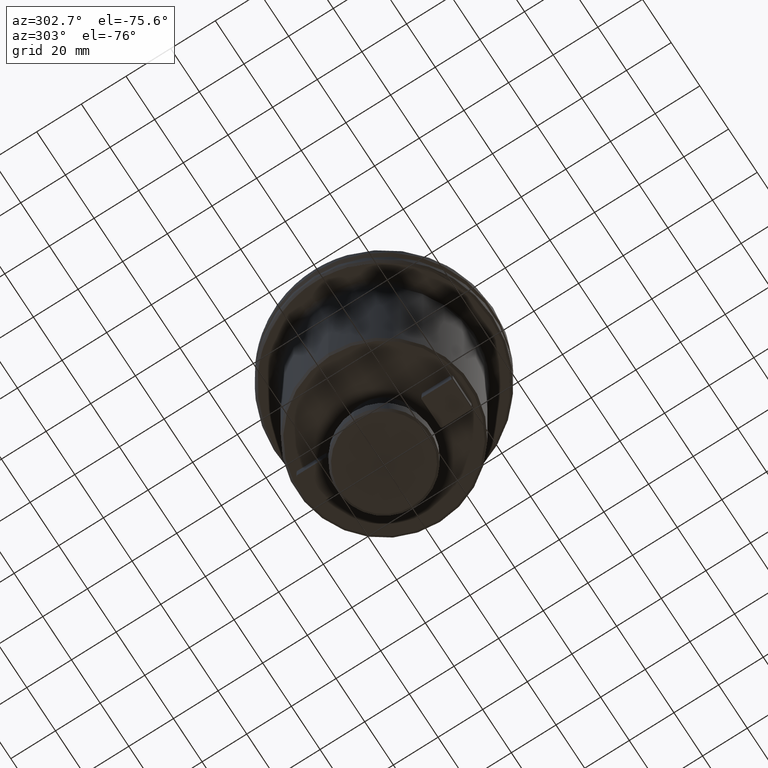
[diagram: clean part render]
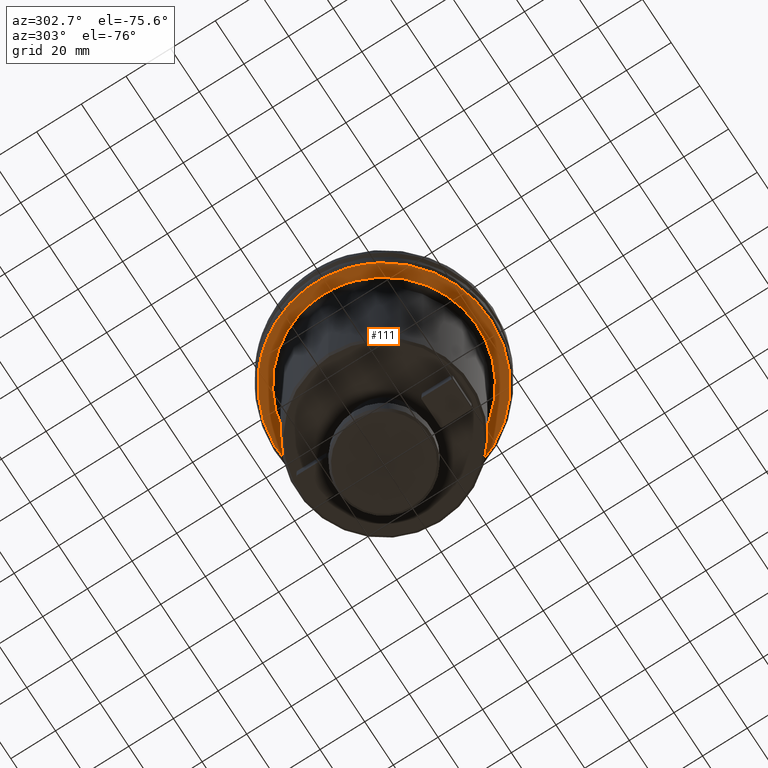
[diagram: same view with one face highlighted and labeled with its STEP entity id]
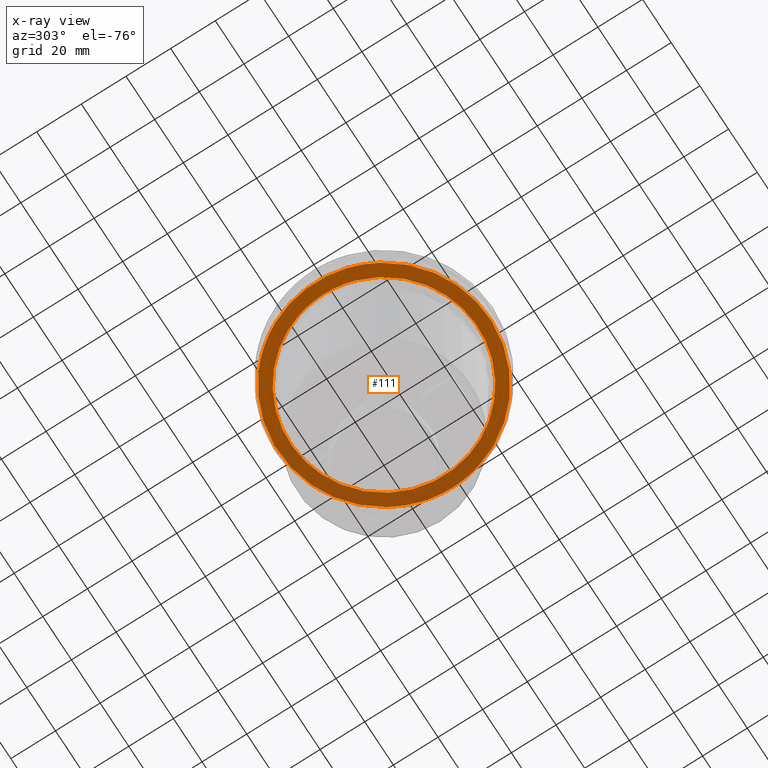
[diagram: x-ray of the same camera — body ghosted, the highlighted face saturated]
A machine part, auxiliary view. The second image highlights one B-rep face of the part: STEP entity #111.
The next image is the same camera in x-ray: the body ghosted, the highlighted face saturated — about 34% of this face is hidden behind the body in this view.
In plain terms, the highlighted planar face has unit normal (0, 0, -1).
Its self-contained STEP definition (entity closure, byte-faithful):
#47 = CARTESIAN_POINT ( 'NONE',  ( 44.91986629715702900, -15.78375219148239400, -19.10000000000000500 ) ) ;
#60 = CARTESIAN_POINT ( 'NONE',  ( 39.74239188769973900, -26.16898826911619100, -19.10000000000001200 ) ) ;
#77 = CARTESIAN_POINT ( 'NONE',  ( 27.68499332084197200, -38.72449491407408600, -19.10000000000000900 ) ) ;
#85 = B_SPLINE_CURVE_WITH_KNOTS ( 'NONE', 3,
 ( #1415, #1771, #47, #2492, #406, #2856, #747, #3205, #1092, #3540, #1434, #3866, #1778, #4178, #2148, #60, #2502, #428, #2869, #760, #3217, #1108, #3550, #1447, #3883, #1793, #4190, #2165, #77, #2518, #441, #2891, #769, #3227, #1121, #3571, #1456, #3895, #1815, #4205, #2176, #93, #2537, #453, #2902, #784, #3241, #1131, #3583, #1479, #3906, #1830, #4228, #2187, #106, #2552, #470, #2917, #797, #3263, #1140, #3594, #1498, #3924, #1843, #4242, #2207, #123, #2565, #485, #2934, #809, #3276, #1164, #3606, #1509, #3939, #1863, #4253, #2220, #147, #2583, #497, #2953, #828, #3288, #1180, #3628, #1520, #3946, #1877, #4269, #2230, #164, #2605, #510, #2964, #845, #3304, #1194, #3641, #1539, #3957, #1894, #4283, #2247, #176, #2622, #529, #2980 ),
 .UNSPECIFIED., .F., .F.,
 ( 4, 1, 1, 1, 1, 1, 2, 2, 1, 1, 1, 1, 2, 2, 1, 1, 1, 1, 2, 2, 2, 1, 1, 1, 1, 2, 2, 1, 1, 1, 1, 2, 2, 1, 1, 1, 1, 1, 2, 2, 2, 1, 1, 1, 1, 1, 2, 2, 1, 1, 1, 1, 2, 2, 1, 1, 1, 1, 2, 2, 2, 1, 1, 1, 1, 2, 2, 1, 1, 1, 1, 2, 2, 1, 1, 1, 1, 1, 2, 2, 4 ),
 ( 0.0000000000000000000, 0.03124999999999778000, 0.04687499999999657900, 0.05468749999999601700, 0.05859374999999566300, 0.06054687499999552400, 0.06152343749999545500, 0.06249999999999538600, 0.09374999999999456000, 0.1093749999999941200, 0.1171874999999938500, 0.1210937499999938100, 0.1230468749999937500, 0.1249999999999937000, 0.1562499999999939800, 0.1718749999999941700, 0.1796874999999942000, 0.1835937499999941700, 0.1855468749999942000, 0.1874999999999942300, 0.2499999999999952800, 0.2812499999999958400, 0.2968749999999960600, 0.3046874999999961700, 0.3085937499999962800, 0.3105468749999962300, 0.3124999999999962300, 0.3437499999999963900, 0.3593749999999965000, 0.3671874999999965600, 0.3710937499999966100, 0.3730468749999966100, 0.3749999999999966700, 0.4062499999999971700, 0.4218749999999974500, 0.4296874999999975600, 0.4335937499999976100, 0.4355468749999976100, 0.4365234374999976700, 0.4374999999999977200, 0.4999999999999995600, 0.5312500000000004400, 0.5468750000000008900, 0.5546875000000011100, 0.5585937500000011100, 0.5605468750000012200, 0.5615234375000013300, 0.5625000000000013300, 0.5937500000000006700, 0.6093750000000003300, 0.6171875000000002200, 0.6210937500000001100, 0.6230468750000001100, 0.6250000000000001100, 0.6562499999999993300, 0.6718749999999988900, 0.6796874999999987800, 0.6835937499999985600, 0.6855468749999985600, 0.6874999999999985600, 0.7499999999999981100, 0.7812499999999978900, 0.7968749999999977800, 0.8046874999999976700, 0.8085937499999975600, 0.8105468749999974500, 0.8124999999999973400, 0.8437499999999964500, 0.8593749999999958900, 0.8671874999999955600, 0.8710937499999953400, 0.8730468749999953400, 0.8749999999999953400, 0.9062499999999948900, 0.9218749999999946700, 0.9296874999999945600, 0.9335937499999945600, 0.9355468749999945600, 0.9365234374999946700, 0.9374999999999946700, 1.000000000000000000 ),
 .UNSPECIFIED. ) ;
#93 = CARTESIAN_POINT ( 'NONE',  ( 15.08070599188592800, -45.13143456946085100, -19.10000000000000900 ) ) ;
#102 = CARTESIAN_POINT ( 'NONE',  ( -23.25549417440079800, 41.53467180138673600, -19.10000000000000500 ) ) ;
#106 = CARTESIAN_POINT ( 'NONE',  ( 2.457672413238246400, -47.58428782218787500, -19.10000000000000900 ) ) ;
#111 = ADVANCED_FACE ( 'NONE', ( #2429, #2931 ), #2632, .T. ) ;
#116 = CARTESIAN_POINT ( 'NONE',  ( -10.82718688243038800, 46.37940535234366000, -19.10000000000000500 ) ) ;
#123 = CARTESIAN_POINT ( 'NONE',  ( -13.70206127222429000, -45.57086505245657500, -19.10000000000000100 ) ) ;
#138 = CARTESIAN_POINT ( 'NONE',  ( 2.921919774953071900, 47.49467552483471900, -19.09999999999999800 ) ) ;
#147 = CARTESIAN_POINT ( 'NONE',  ( -24.37778840664681800, -40.95242410592162200, -19.10000000000000500 ) ) ;
#150 = EDGE_CURVE ( 'NONE', #1411, #1868, #2306, .T. ) ;
#156 = ORIENTED_EDGE ( 'NONE', *, *, #821, .T. ) ;
#159 = CARTESIAN_POINT ( 'NONE',  ( 18.21854896511472800, 43.96310894627836800, -19.10000000000000900 ) ) ;
#164 = CARTESIAN_POINT ( 'NONE',  ( -38.91719004522487800, -27.38454355136135400, -19.10000000000000900 ) ) ;
#173 = CARTESIAN_POINT ( 'NONE',  ( 25.76667434766581300, 40.01666842955532400, -19.10000000000000500 ) ) ;
#176 = CARTESIAN_POINT ( 'NONE',  ( -43.27416862306105800, -19.78925870223156000, -19.10000000000000900 ) ) ;
#187 = CARTESIAN_POINT ( 'NONE',  ( 37.95643437415584000, 28.69908590947580500, -19.10000000000000500 ) ) ;
#203 = CARTESIAN_POINT ( 'NONE',  ( 43.84707740126011500, 18.48525077571082100, -19.10000000000000500 ) ) ;
#226 = CARTESIAN_POINT ( 'NONE',  ( 39.66283206204889200, 13.85551239477848300, -19.10000000000000100 ) ) ;
#244 = CARTESIAN_POINT ( 'NONE',  ( 35.31399927357236400, 22.74766857199762200, -19.10000000000000500 ) ) ;
#250 = CIRCLE ( 'NONE', #2920, 42.00000000000000000 ) ;
#260 = CARTESIAN_POINT ( 'NONE',  ( 28.30695871311028000, 31.11138620266438100, -19.10000000000000900 ) ) ;
#272 = CARTESIAN_POINT ( 'NONE',  ( 13.15912872123934300, 39.88574553977700500, -19.10000000000000900 ) ) ;
#282 = CARTESIAN_POINT ( 'NONE',  ( 4.213360910964308200, 41.84149705313080100, -19.10000000000000900 ) ) ;
#302 = CARTESIAN_POINT ( 'NONE',  ( -10.85244328541656100, 40.58028394299601200, -19.10000000000000500 ) ) ;
#306 = VERTEX_POINT ( 'NONE', #3455 ) ;
#317 = CARTESIAN_POINT ( 'NONE',  ( 45.81642165836818500, -12.85000000000000000, -19.10000000000000500 ) ) ;
#319 = CARTESIAN_POINT ( 'NONE',  ( -20.95891477184435200, 36.46815260777160000, -19.09999999999999800 ) ) ;
#329 = CARTESIAN_POINT ( 'NONE',  ( -33.94703029678682800, 24.73124541940928700, -19.10000000000000900 ) ) ;
#345 = CARTESIAN_POINT ( 'NONE',  ( -38.54605468183990500, 16.81266482017948900, -19.10000000000000500 ) ) ;
#387 = AXIS2_PLACEMENT_3D ( 'NONE', #963, #1001, #988 ) ;
#406 = CARTESIAN_POINT ( 'NONE',  ( 43.72681445220428700, -18.77235708420023000, -19.10000000000000900 ) ) ;
#428 = CARTESIAN_POINT ( 'NONE',  ( 39.61125381757043600, -26.36706712308016200, -19.10000000000000100 ) ) ;
#439 = CARTESIAN_POINT ( 'NONE',  ( 0.0000000000000000000, 0.0000000000000000000, -19.10000000000000500 ) ) ;
#441 = CARTESIAN_POINT ( 'NONE',  ( 24.05664872149412000, -41.06504018283744300, -19.10000000000000500 ) ) ;
#453 = CARTESIAN_POINT ( 'NONE',  ( 14.84463130699052900, -45.20962530651281200, -19.10000000000000900 ) ) ;
#461 = CARTESIAN_POINT ( 'NONE',  ( -20.97772230054858200, 42.71191916152597700, -19.10000000000000100 ) ) ;
#470 = CARTESIAN_POINT ( 'NONE',  ( -3.066716835733801300, -47.51334310158583900, -19.10000000000000900 ) ) ;
#480 = CARTESIAN_POINT ( 'NONE',  ( -6.393095184566051100, 47.17156811542699300, -19.10000000000000900 ) ) ;
#485 = CARTESIAN_POINT ( 'NONE',  ( -14.46442323065742200, -45.33270475704076600, -19.10000000000000500 ) ) ;
#488 = CARTESIAN_POINT ( 'NONE',  ( 39.98596628818666000, 12.84999999999999800, -19.09999999999999800 ) ) ;
#493 = CARTESIAN_POINT ( 'NONE',  ( 5.478699833393303500, 47.28562886859818800, -19.10000000000000100 ) ) ;
#497 = CARTESIAN_POINT ( 'NONE',  ( -29.80952097295647000, -37.11384944854526700, -19.10000000000000500 ) ) ;
#506 = CARTESIAN_POINT ( 'NONE',  ( 19.36869561264892800, 43.46430390230612800, -19.10000000000000100 ) ) ;
#510 = CARTESIAN_POINT ( 'NONE',  ( -39.38217416850997700, -26.70802196479451900, -19.10000000000000500 ) ) ;
#523 = CARTESIAN_POINT ( 'NONE',  ( 28.41294149275874800, 38.17601633497948700, -19.09999999999999800 ) ) ;
#529 = CARTESIAN_POINT ( 'NONE',  ( -45.15259770386980900, -15.21685122227706400, -19.10000000000000100 ) ) ;
#538 = CARTESIAN_POINT ( 'NONE',  ( 39.55409234850913700, 26.48536274293576300, -19.10000000000000100 ) ) ;
#548 = CARTESIAN_POINT ( 'NONE',  ( 43.91854959793744200, 18.31478907998181800, -19.10000000000000100 ) ) ;
#583 = EDGE_LOOP ( 'NONE', ( #1916, #156, #2788, #2485, #1065 ) ) ;
#594 = CARTESIAN_POINT ( 'NONE',  ( 34.51018533127427200, 23.93910244139777500, -19.10000000000000500 ) ) ;
#602 = CARTESIAN_POINT ( 'NONE',  ( 23.82034770913758200, 34.61057954295900200, -19.10000000000000500 ) ) ;
#615 = CARTESIAN_POINT ( 'NONE',  ( 12.82469673703048400, 39.99415024367797100, -19.10000000000000900 ) ) ;
#631 = CARTESIAN_POINT ( 'NONE',  ( -1.056071524167518300, 42.00001320711148600, -19.10000000000000900 ) ) ;
#646 = CARTESIAN_POINT ( 'NONE',  ( -12.23267289723163600, 40.17953746732983700, -19.10000000000000500 ) ) ;
#659 = CARTESIAN_POINT ( 'NONE',  ( -25.66299997043541100, 33.26727541895927900, -19.10000000000000500 ) ) ;
#679 = CARTESIAN_POINT ( 'NONE',  ( -34.15255691184798100, 24.44601719081621000, -19.10000000000000500 ) ) ;
#695 = CARTESIAN_POINT ( 'NONE',  ( -39.98596628818666700, 12.85000000000000000, -19.09999999999999800 ) ) ;
#725 = VERTEX_POINT ( 'NONE', #893 ) ;
#747 = CARTESIAN_POINT ( 'NONE',  ( 43.40111667457645700, -19.50949723452300700, -19.10000000000000900 ) ) ;
#760 = CARTESIAN_POINT ( 'NONE',  ( 37.67621538465287800, -29.11717796348957100, -19.10000000000000500 ) ) ;
#768 = DIRECTION ( 'NONE',  ( -1.000000000000000000, 2.664535259100375700E-015, 0.0000000000000000000 ) ) ;
#769 = CARTESIAN_POINT ( 'NONE',  ( 22.52972475072374100, -41.91334347041178200, -19.10000000000000100 ) ) ;
#784 = CARTESIAN_POINT ( 'NONE',  ( 11.71142353891909200, -46.15177667591264300, -19.10000000000000500 ) ) ;
#795 = CARTESIAN_POINT ( 'NONE',  ( -20.42700269620342000, 42.97696412136785700, -19.09999999999999800 ) ) ;
#797 = CARTESIAN_POINT ( 'NONE',  ( -6.266551039190168200, -47.17166706347747900, -19.10000000000000100 ) ) ;
#804 = CARTESIAN_POINT ( 'NONE',  ( -3.905819226031873400, 47.42442718986811200, -19.10000000000000500 ) ) ;
#809 = CARTESIAN_POINT ( 'NONE',  ( -14.69055632917383000, -45.25992943446074400, -19.10000000000000100 ) ) ;
#814 = CARTESIAN_POINT ( 'NONE',  ( -36.93598507658065700, 30.00000000000000000, -19.10000000000000500 ) ) ;
#818 = CARTESIAN_POINT ( 'NONE',  ( 8.014402807646559900, 46.90567306712805600, -19.10000000000000500 ) ) ;
#821 = EDGE_CURVE ( 'NONE', #2650, #1411, #250, .T. ) ;
#828 = CARTESIAN_POINT ( 'NONE',  ( -33.04293178105576300, -34.25236535246320100, -19.10000000000000500 ) ) ;
#832 = EDGE_CURVE ( 'NONE', #1072, #2650, #4110, .T. ) ;
#837 = CARTESIAN_POINT ( 'NONE',  ( -38.98676025536540400, 27.47508662003281500, -19.10000000000000500 ) ) ;
#840 = CARTESIAN_POINT ( 'NONE',  ( 19.64105775858945100, 43.34165811582305100, -19.10000000000000900 ) ) ;
#845 = CARTESIAN_POINT ( 'NONE',  ( -39.52121115035011900, -26.50183329894598200, -19.10000000000000900 ) ) ;
#848 = CARTESIAN_POINT ( 'NONE',  ( -40.75990645544141000, 24.76850955877843700, -19.10000000000000500 ) ) ;
#856 = CARTESIAN_POINT ( 'NONE',  ( 29.39637043276513900, 37.41901030422590700, -19.10000000000000900 ) ) ;
#869 = CARTESIAN_POINT ( 'NONE',  ( -43.75094089817592600, 18.99202807369529800, -19.10000000000000500 ) ) ;
#873 = CARTESIAN_POINT ( 'NONE',  ( 40.92895922265621100, 24.27337234609990800, -19.10000000000000500 ) ) ;
#893 = CARTESIAN_POINT ( 'NONE',  ( 45.81642165836818500, 12.85000000000000000, -19.10000000000000500 ) ) ;
#894 = CARTESIAN_POINT ( 'NONE',  ( 45.30006797984477600, 14.69104886070644700, -19.10000000000000500 ) ) ;
#907 = CARTESIAN_POINT ( 'NONE',  ( -44.93810529642089300, 15.98161967225063900, -19.10000000000000100 ) ) ;
#919 = CARTESIAN_POINT ( 'NONE',  ( 38.39634171031906400, 17.03573184468762500, -19.10000000000000500 ) ) ;
#932 = DIRECTION ( 'NONE',  ( 1.000000000000000000, 0.0000000000000000000, 0.0000000000000000000 ) ) ;
#933 = CARTESIAN_POINT ( 'NONE',  ( 34.31348525999480600, 24.21960723359058700, -19.10000000000000500 ) ) ;
#943 = DIRECTION ( 'NONE',  ( -0.0000000000000000000, -0.0000000000000000000, 1.000000000000000000 ) ) ;
#953 = CARTESIAN_POINT ( 'NONE',  ( 20.68378777586021400, 36.56173116150525700, -19.10000000000000500 ) ) ;
#961 = CARTESIAN_POINT ( 'NONE',  ( 0.0000000000000000000, 0.0000000000000000000, -19.10000000000000500 ) ) ;
#963 = CARTESIAN_POINT ( 'NONE',  ( 0.0000000000000000000, 0.0000000000000000000, -19.10000000000000500 ) ) ;
#969 = CARTESIAN_POINT ( 'NONE',  ( 11.64539233177989500, 40.36815965128677400, -19.10000000000001200 ) ) ;
#981 = CARTESIAN_POINT ( 'NONE',  ( -36.93598507658065700, 30.00000000000000000, -19.10000000000000500 ) ) ;
#982 = CARTESIAN_POINT ( 'NONE',  ( -4.471247866684340300, 41.76725493963739000, -19.10000000000000500 ) ) ;
#988 = DIRECTION ( 'NONE',  ( -1.000000000000000000, 0.0000000000000000000, 0.0000000000000000000 ) ) ;
#994 = CARTESIAN_POINT ( 'NONE',  ( -12.55990744677068700, 40.07809089971730300, -19.10000000000000100 ) ) ;
#1001 = DIRECTION ( 'NONE',  ( -0.0000000000000000000, -0.0000000000000000000, 1.000000000000000000 ) ) ;
#1017 = CARTESIAN_POINT ( 'NONE',  ( -28.48022563675362700, 30.87808300336503100, -19.10000000000000500 ) ) ;
#1022 = CARTESIAN_POINT ( 'NONE',  ( -45.81642165836818500, 12.85000000000000000, -19.10000000000000500 ) ) ;
#1030 = CARTESIAN_POINT ( 'NONE',  ( -34.86944236836327300, 23.43769325493348200, -19.10000000000000900 ) ) ;
#1038 = B_SPLINE_CURVE_WITH_KNOTS ( 'NONE', 3,
 ( #1022, #907, #869, #848, #837, #814 ),
 .UNSPECIFIED., .F., .F.,
 ( 4, 2, 4 ),
 ( 0.0000000000000000000, 0.5000000000000000000, 1.000000000000000000 ),
 .UNSPECIFIED. ) ;
#1040 = CIRCLE ( 'NONE', #2889, 47.58431457505076900 ) ;
#1065 = ORIENTED_EDGE ( 'NONE', *, *, #1405, .T. ) ;
#1072 = VERTEX_POINT ( 'NONE', #488 ) ;
#1073 = CARTESIAN_POINT ( 'NONE',  ( -39.98596628818666700, 12.85000000000000000, -19.09999999999999800 ) ) ;
#1092 = CARTESIAN_POINT ( 'NONE',  ( 43.32195833354379000, -19.68441884222572800, -19.10000000000000500 ) ) ;
#1105 = DIRECTION ( 'NONE',  ( -1.000000000000000000, 0.0000000000000000000, -0.0000000000000000000 ) ) ;
#1108 = CARTESIAN_POINT ( 'NONE',  ( 35.45219036235576500, -31.74276426336270500, -19.10000000000000500 ) ) ;
#1121 = CARTESIAN_POINT ( 'NONE',  ( 22.16184123277559700, -42.10851106048077200, -19.10000000000000900 ) ) ;
#1126 = CARTESIAN_POINT ( 'NONE',  ( -26.74803097108493000, 39.36004225602716400, -19.10000000000000500 ) ) ;
#1131 = CARTESIAN_POINT ( 'NONE',  ( 8.433288832968020900, -46.83300009518481500, -19.10000000000000500 ) ) ;
#1136 = CARTESIAN_POINT ( 'NONE',  ( -19.30618639452273300, 43.50317719476752400, -19.10000000000000100 ) ) ;
#1140 = CARTESIAN_POINT ( 'NONE',  ( -7.064305541282759100, -47.05712494446966300, -19.10000000000000900 ) ) ;
#1154 = VERTEX_POINT ( 'NONE', #1564 ) ;
#1156 = CARTESIAN_POINT ( 'NONE',  ( -3.155000903945456500, 47.48025286090142300, -19.10000000000000900 ) ) ;
#1160 = VERTEX_POINT ( 'NONE', #1927 ) ;
#1164 = CARTESIAN_POINT ( 'NONE',  ( -17.86104397993744900, -44.13944229614413200, -19.10000000000000500 ) ) ;
#1173 = CARTESIAN_POINT ( 'NONE',  ( 8.615996470641381000, 46.79781295841750900, -19.10000000000000500 ) ) ;
#1180 = CARTESIAN_POINT ( 'NONE',  ( -34.27205937641023300, -33.01125269224346700, -19.10000000000000100 ) ) ;
#1184 = CARTESIAN_POINT ( 'NONE',  ( 0.0000000000000000000, 1.392610934382537900E-015, -19.10000000000000500 ) ) ;
#1191 = CARTESIAN_POINT ( 'NONE',  ( 20.63973171907657900, 42.88620113813023900, -19.10000000000000900 ) ) ;
#1194 = CARTESIAN_POINT ( 'NONE',  ( -41.27447217701355000, -23.73945825336500100, -19.10000000000000500 ) ) ;
#1201 = CARTESIAN_POINT ( 'NONE',  ( 31.34720755508379900, 35.85573751084054800, -19.10000000000000500 ) ) ;
#1220 = CARTESIAN_POINT ( 'NONE',  ( 41.24130619434603800, 23.73682857431735700, -19.10000000000000900 ) ) ;
#1260 = CARTESIAN_POINT ( 'NONE',  ( 37.80913703556716900, 18.28934513759559300, -19.10000000000000500 ) ) ;
#1264 = CARTESIAN_POINT ( 'NONE',  ( 0.0000000000000000000, 0.0000000000000000000, -19.10000000000000500 ) ) ;
#1274 = CARTESIAN_POINT ( 'NONE',  ( 33.58234678643996300, 25.24862955926969500, -19.10000000000000500 ) ) ;
#1287 = CARTESIAN_POINT ( 'NONE',  ( 19.43035160354336800, 37.23550691542352100, -19.10000000000000500 ) ) ;
#1297 = CARTESIAN_POINT ( 'NONE',  ( 8.190777940832218100, 41.20007492816253600, -19.10000000000000500 ) ) ;
#1312 = CARTESIAN_POINT ( 'NONE',  ( -5.844481615887358000, 41.59174265287745000, -19.09999999999999800 ) ) ;
#1327 = CARTESIAN_POINT ( 'NONE',  ( -13.76327843282057600, 39.69684467417290100, -19.10000000000000100 ) ) ;
#1337 = CARTESIAN_POINT ( 'NONE',  ( -29.50518347949411800, 29.89089638213193100, -19.10000000000000500 ) ) ;
#1353 = CARTESIAN_POINT ( 'NONE',  ( -36.71841215741394400, 20.40326508188038400, -19.10000000000000500 ) ) ;
#1405 = EDGE_CURVE ( 'NONE', #4424, #1072, #2210, .T. ) ;
#1411 = VERTEX_POINT ( 'NONE', #3548 ) ;
#1415 = CARTESIAN_POINT ( 'NONE',  ( 45.81642165836818500, -12.85000000000000000, -19.10000000000000500 ) ) ;
#1434 = CARTESIAN_POINT ( 'NONE',  ( 42.75923279349206800, -20.91773531037192800, -19.10000000000000500 ) ) ;
#1447 = CARTESIAN_POINT ( 'NONE',  ( 34.89789368789844600, -32.34827798778996300, -19.10000000000000100 ) ) ;
#1456 = CARTESIAN_POINT ( 'NONE',  ( 20.84887959193406800, -42.79392924822951000, -19.10000000000000900 ) ) ;
#1469 = CARTESIAN_POINT ( 'NONE',  ( -25.69983870482903400, 40.04760097354591900, -19.10000000000000900 ) ) ;
#1470 = ORIENTED_EDGE ( 'NONE', *, *, #3588, .T. ) ;
#1471 = AXIS2_PLACEMENT_3D ( 'NONE', #961, #943, #932 ) ;
#1479 = CARTESIAN_POINT ( 'NONE',  ( 7.606337559600864200, -46.97256599227938500, -19.10000000000000500 ) ) ;
#1482 = CARTESIAN_POINT ( 'NONE',  ( -45.81642165836818500, 12.85000000000000000, -19.10000000000000500 ) ) ;
#1491 = CARTESIAN_POINT ( 'NONE',  ( -16.31507297257428800, 44.70483040319042100, -19.10000000000000100 ) ) ;
#1498 = CARTESIAN_POINT ( 'NONE',  ( -7.254117645265835400, -47.02814260653002500, -19.10000000000000900 ) ) ;
#1506 = CARTESIAN_POINT ( 'NONE',  ( -0.4276219226842210000, 47.60060714561257100, -19.10000000000000500 ) ) ;
#1509 = CARTESIAN_POINT ( 'NONE',  ( -20.98967348492718400, -42.70707776895816500, -19.10000000000000500 ) ) ;
#1511 = CARTESIAN_POINT ( 'NONE',  ( 0.0000000000000000000, 0.0000000000000000000, -19.10000000000000500 ) ) ;
#1515 = CARTESIAN_POINT ( 'NONE',  ( 8.797719920410600000, 46.76398851016824700, -19.10000000000000500 ) ) ;
#1520 = CARTESIAN_POINT ( 'NONE',  ( -34.55932176383649300, -32.70974151198348100, -19.10000000000000500 ) ) ;
#1533 = CARTESIAN_POINT ( 'NONE',  ( 23.44915669443227200, 41.41046852583234300, -19.10000000000000500 ) ) ;
#1539 = CARTESIAN_POINT ( 'NONE',  ( -42.81563655119826700, -20.76707791608161100, -19.10000000000000500 ) ) ;
#1548 = CARTESIAN_POINT ( 'NONE',  ( 34.91299446006971900, 32.34739424200956400, -19.10000000000000500 ) ) ;
#1558 = CARTESIAN_POINT ( 'NONE',  ( 41.84803922460157100, 22.67082524195410900, -19.10000000000000100 ) ) ;
#1564 = CARTESIAN_POINT ( 'NONE',  ( -29.99999999999999600, 36.93598507658065700, -19.10000000000000500 ) ) ;
#1597 = CARTESIAN_POINT ( 'NONE',  ( 37.66396913253122100, 18.58565250516175000, -19.10000000000001200 ) ) ;
#1599 = DIRECTION ( 'NONE',  ( 1.000000000000000000, 0.0000000000000000000, 0.0000000000000000000 ) ) ;
#1610 = CARTESIAN_POINT ( 'NONE',  ( 31.26056297241980900, 28.05959898489966900, -19.10000000000000500 ) ) ;
#1626 = CARTESIAN_POINT ( 'NONE',  ( 19.04871731800880500, 37.43215198220627100, -19.10000000000000500 ) ) ;
#1646 = CARTESIAN_POINT ( 'NONE',  ( 6.775494912107594900, 41.45028589430393100, -19.10000000000000500 ) ) ;
#1649 = AXIS2_PLACEMENT_3D ( 'NONE', #1788, #4185, #2159 ) ;
#1661 = CARTESIAN_POINT ( 'NONE',  ( -6.171019598763351200, 41.54418815921702900, -19.10000000000000500 ) ) ;
#1668 = AXIS2_PLACEMENT_3D ( 'NONE', #1184, #1767, #1105 ) ;
#1677 = CARTESIAN_POINT ( 'NONE',  ( -17.14980821143680600, 38.34642057423984300, -19.10000000000000500 ) ) ;
#1695 = CARTESIAN_POINT ( 'NONE',  ( -29.80916070757828600, 29.58772670196544000, -19.10000000000000500 ) ) ;
#1714 = CARTESIAN_POINT ( 'NONE',  ( -37.38963392346740000, 19.13240202099650800, -19.10000000000000500 ) ) ;
#1767 = DIRECTION ( 'NONE',  ( 0.0000000000000000000, 0.0000000000000000000, -1.000000000000000000 ) ) ;
#1771 = CARTESIAN_POINT ( 'NONE',  ( 45.48455499196277400, -14.03326405621701100, -19.10000000000000100 ) ) ;
#1778 = CARTESIAN_POINT ( 'NONE',  ( 40.76988109013157000, -24.55223597831507500, -19.10000000000000900 ) ) ;
#1788 = CARTESIAN_POINT ( 'NONE',  ( 0.0000000000000000000, 0.0000000000000000000, -19.10000000000000500 ) ) ;
#1793 = CARTESIAN_POINT ( 'NONE',  ( 34.73067266395411000, -32.52774543433425700, -19.10000000000000100 ) ) ;
#1815 = CARTESIAN_POINT ( 'NONE',  ( 16.93742074003273900, -44.47652521782405400, -19.10000000000000100 ) ) ;
#1825 = CARTESIAN_POINT ( 'NONE',  ( -25.44784265904079100, 40.20793179859312300, -19.09999999999999400 ) ) ;
#1830 = CARTESIAN_POINT ( 'NONE',  ( 7.409008762633226800, -47.00399060518158500, -19.09999999999999800 ) ) ;
#1838 = CARTESIAN_POINT ( 'NONE',  ( -15.14249711230291600, 45.11134788466759500, -19.09999999999999800 ) ) ;
#1843 = CARTESIAN_POINT ( 'NONE',  ( -8.593580539630483600, -46.81937647076279800, -19.10000000000000500 ) ) ;
#1846 = EDGE_CURVE ( 'NONE', #1868, #4424, #4423, .T. ) ;
#1854 = CARTESIAN_POINT ( 'NONE',  ( 2.176018877763047600, 47.53568396421928100, -19.10000000000000900 ) ) ;
#1863 = CARTESIAN_POINT ( 'NONE',  ( -21.72237678637516800, -42.33689194281741700, -19.10000000000000500 ) ) ;
#1868 = VERTEX_POINT ( 'NONE', #2135 ) ;
#1872 = CARTESIAN_POINT ( 'NONE',  ( 12.58557862074794000, 45.92953526851350400, -19.10000000000000500 ) ) ;
#1877 = CARTESIAN_POINT ( 'NONE',  ( -35.57383602575539800, -31.63065524385431400, -19.10000000000000100 ) ) ;
#1886 = CARTESIAN_POINT ( 'NONE',  ( 24.50233304969292900, 40.79115049132191500, -19.10000000000000500 ) ) ;
#1894 = CARTESIAN_POINT ( 'NONE',  ( -43.17333286363982100, -20.00853958726899200, -19.10000000000000500 ) ) ;
#1904 = CARTESIAN_POINT ( 'NONE',  ( 37.03410230690259700, 29.88621448141576700, -19.10000000000000500 ) ) ;
#1916 = ORIENTED_EDGE ( 'NONE', *, *, #832, .T. ) ;
#1919 = CARTESIAN_POINT ( 'NONE',  ( 43.26075550676694800, 19.82919047881128400, -19.10000000000000500 ) ) ;
#1927 = CARTESIAN_POINT ( 'NONE',  ( 47.58431457505076900, 0.0000000000000000000, -19.10000000000000500 ) ) ;
#1946 = CARTESIAN_POINT ( 'NONE',  ( 0.0000000000000000000, 0.0000000000000000000, -19.10000000000000500 ) ) ;
#1957 = CARTESIAN_POINT ( 'NONE',  ( 37.62060759770284300, 18.67327029331842100, -19.10000000000000500 ) ) ;
#1980 = CARTESIAN_POINT ( 'NONE',  ( 30.30033039236879200, 29.08454755832272600, -19.10000000000000500 ) ) ;
#1999 = CARTESIAN_POINT ( 'NONE',  ( 16.38614117406509900, 38.70041143161874000, -19.10000000000000500 ) ) ;
#2014 = CARTESIAN_POINT ( 'NONE',  ( 6.437097436698403300, 41.50379408942963300, -19.10000000000000500 ) ) ;
#2024 = ORIENTED_EDGE ( 'NONE', *, *, #3986, .F. ) ;
#2030 = CARTESIAN_POINT ( 'NONE',  ( -6.267713066866428500, 41.52971120028454500, -19.10000000000000900 ) ) ;
#2034 = EDGE_CURVE ( 'NONE', #1154, #2427, #3720, .T. ) ;
#2041 = EDGE_CURVE ( 'NONE', #2244, #2427, #1038, .T. ) ;
#2049 = CARTESIAN_POINT ( 'NONE',  ( -18.41939268176948400, 37.74581965984855000, -19.10000000000000500 ) ) ;
#2062 = CARTESIAN_POINT ( 'NONE',  ( -31.83122458947670800, 27.44085655891737100, -19.10000000000000500 ) ) ;
#2077 = CARTESIAN_POINT ( 'NONE',  ( -37.54410974358242500, 18.82660274158065800, -19.10000000000000900 ) ) ;
#2109 = AXIS2_PLACEMENT_3D ( 'NONE', #1511, #2158, #2677 ) ;
#2135 = CARTESIAN_POINT ( 'NONE',  ( -39.98596628818666000, -12.85000000000000500, -19.09999999999999800 ) ) ;
#2148 = CARTESIAN_POINT ( 'NONE',  ( 39.87405336317789300, -25.96868526588640000, -19.10000000000000100 ) ) ;
#2158 = DIRECTION ( 'NONE',  ( -0.0000000000000000000, -0.0000000000000000000, 1.000000000000000000 ) ) ;
#2159 = DIRECTION ( 'NONE',  ( 1.000000000000000000, 0.0000000000000000000, 0.0000000000000000000 ) ) ;
#2165 = CARTESIAN_POINT ( 'NONE',  ( 30.87175777942523800, -36.30849107487021900, -19.10000000000000100 ) ) ;
#2176 = CARTESIAN_POINT ( 'NONE',  ( 15.31431248954055300, -45.05316046877541000, -19.10000000000000100 ) ) ;
#2182 = CARTESIAN_POINT ( 'NONE',  ( -24.51896949215701900, 40.79270656059319600, -19.10000000000000100 ) ) ;
#2185 = CARTESIAN_POINT ( 'NONE',  ( 39.98596628818666000, -12.85000000000000000, -19.09999999999999800 ) ) ;
#2187 = CARTESIAN_POINT ( 'NONE',  ( 4.901693833011012000, -47.39496812887867300, -19.10000000000001200 ) ) ;
#2199 = CARTESIAN_POINT ( 'NONE',  ( -12.76496267438223200, 45.88395211695184600, -19.09999999999999800 ) ) ;
#2202 = CARTESIAN_POINT ( 'NONE',  ( 39.33959402213734100, -14.86134783189627000, -19.10000000000000500 ) ) ;
#2207 = CARTESIAN_POINT ( 'NONE',  ( -12.63026754929554600, -45.88542074854634500, -19.10000000000000500 ) ) ;
#2208 = CARTESIAN_POINT ( 'NONE',  ( 38.54605468183992700, -16.81266482017946700, -19.10000000000000900 ) ) ;
#2210 = CIRCLE ( 'NONE', #3230, 42.00000000000000000 ) ;
#2213 = CARTESIAN_POINT ( 'NONE',  ( 37.59064972956722500, -18.73350231085989700, -19.10000000000000100 ) ) ;
#2216 = CARTESIAN_POINT ( 'NONE',  ( 2.795956690231360800, 47.50226303628877400, -19.10000000000000100 ) ) ;
#2217 = CARTESIAN_POINT ( 'NONE',  ( 37.57478275261382800, -18.76530919720509900, -19.10000000000000100 ) ) ;
#2220 = CARTESIAN_POINT ( 'NONE',  ( -21.94033403670224300, -42.22434829679992400, -19.10000000000000500 ) ) ;
#2221 = CARTESIAN_POINT ( 'NONE',  ( 37.54410974358242500, -18.82660274158061900, -19.10000000000000100 ) ) ;
#2224 = CARTESIAN_POINT ( 'NONE',  ( 37.49799273568452700, -18.91847837016374000, -19.10000000000000500 ) ) ;
#2225 = CARTESIAN_POINT ( 'NONE',  ( 16.66931579828063500, 44.58704690948568600, -19.10000000000000500 ) ) ;
#2230 = CARTESIAN_POINT ( 'NONE',  ( -38.25019637275914900, -28.31889818161814500, -19.10000000000000500 ) ) ;
#2232 = CARTESIAN_POINT ( 'NONE',  ( 37.38963392346742200, -19.13240202099648700, -19.10000000000000500 ) ) ;
#2236 = CARTESIAN_POINT ( 'NONE',  ( 37.16990645721166000, -19.55843805921733700, -19.10000000000000500 ) ) ;
#2237 = EDGE_CURVE ( 'NONE', #2260, #1160, #4360, .T. ) ;
#2240 = CARTESIAN_POINT ( 'NONE',  ( 24.81440725883085800, 40.60206258293646200, -19.10000000000000500 ) ) ;
#2244 = VERTEX_POINT ( 'NONE', #1482 ) ;
#2247 = CARTESIAN_POINT ( 'NONE',  ( -43.25687800644198700, -19.82702823906568700, -19.10000000000000100 ) ) ;
#2249 = CARTESIAN_POINT ( 'NONE',  ( 36.71841215741395800, -20.40326508188036300, -19.10000000000000500 ) ) ;
#2259 = CARTESIAN_POINT ( 'NONE',  ( 37.80367910322554800, 28.90003077334454300, -19.10000000000000900 ) ) ;
#2260 = VERTEX_POINT ( 'NONE', #317 ) ;
#2272 = CARTESIAN_POINT ( 'NONE',  ( 35.76726608867397800, -22.06393891209173200, -19.10000000000000500 ) ) ;
#2275 = CARTESIAN_POINT ( 'NONE',  ( 43.77572545363726400, 18.65419956364984300, -19.10000000000000100 ) ) ;
#2280 = CARTESIAN_POINT ( 'NONE',  ( 34.86944236836328100, -23.43769325493345000, -19.10000000000000100 ) ) ;
#2285 = CARTESIAN_POINT ( 'NONE',  ( 34.19449928193090900, -24.38730907363920900, -19.10000000000000500 ) ) ;
#2292 = CARTESIAN_POINT ( 'NONE',  ( 34.15255691185148400, -24.44601719081128300, -19.10000000000000100 ) ) ;
#2301 = CARTESIAN_POINT ( 'NONE',  ( 34.07050790624332800, -24.56024464789562600, -19.10000000000000500 ) ) ;
#2303 = DIRECTION ( 'NONE',  ( -1.000000000000000000, -4.440892098500627000E-015, 0.0000000000000000000 ) ) ;
#2306 = CIRCLE ( 'NONE', #387, 42.00000000000000000 ) ;
#2313 = CARTESIAN_POINT ( 'NONE',  ( 33.94703029679848100, -24.73124541939289500, -19.10000000000000500 ) ) ;
#2321 = CARTESIAN_POINT ( 'NONE',  ( 33.65608716753167300, -25.12786432064840600, -19.10000000000000900 ) ) ;
#2325 = CARTESIAN_POINT ( 'NONE',  ( 36.32943245806730900, 21.12550586492986000, -19.10000000000000900 ) ) ;
#2337 = CARTESIAN_POINT ( 'NONE',  ( 33.06288608008316000, -25.91157052754025600, -19.10000000000000500 ) ) ;
#2339 = CARTESIAN_POINT ( 'NONE',  ( 30.00797217103912100, 29.38608116386805600, -19.10000000000000500 ) ) ;
#2350 = CARTESIAN_POINT ( 'NONE',  ( 31.83122458952635700, -27.44085655884748600, -19.10000000000000500 ) ) ;
#2352 = CARTESIAN_POINT ( 'NONE',  ( 13.62574322664351500, 39.73010055697096700, -19.10000000000001200 ) ) ;
#2371 = CARTESIAN_POINT ( 'NONE',  ( 6.334219728179170300, 41.51961844933410400, -19.10000000000000100 ) ) ;
#2375 = ORIENTED_EDGE ( 'NONE', *, *, #2237, .F. ) ;
#2385 = CARTESIAN_POINT ( 'NONE',  ( 30.69792734220368800, -28.68631364429399600, -19.10000000000000100 ) ) ;
#2386 = CARTESIAN_POINT ( 'NONE',  ( -8.997394243984697200, 41.05071933103931100, -19.10000000000000500 ) ) ;
#2392 = CARTESIAN_POINT ( 'NONE',  ( 29.80916070757473700, -29.58772670197041400, -19.09999999999999800 ) ) ;
#2397 = CARTESIAN_POINT ( 'NONE',  ( 29.70725458203373000, -29.69005628931465800, -19.10000000000000500 ) ) ;
#2399 = CARTESIAN_POINT ( 'NONE',  ( -18.79591448481758300, 37.55973587056673300, -19.10000000000000100 ) ) ;
#2410 = CARTESIAN_POINT ( 'NONE',  ( 29.50518347948854400, -29.89089638214280200, -19.10000000000000500 ) ) ;
#2414 = CARTESIAN_POINT ( 'NONE',  ( -33.65608716750995900, 25.12786432067896700, -19.10000000000000500 ) ) ;
#2425 = CARTESIAN_POINT ( 'NONE',  ( 29.20066369695868100, -30.19051002046040100, -19.10000000000000100 ) ) ;
#2427 = VERTEX_POINT ( 'NONE', #981 ) ;
#2429 = FACE_OUTER_BOUND ( 'NONE', #4123, .T. ) ;
#2437 = CARTESIAN_POINT ( 'NONE',  ( -37.59064972956721100, 18.73350231085991900, -19.10000000000000900 ) ) ;
#2443 = CARTESIAN_POINT ( 'NONE',  ( 28.48022563673774600, -30.87808300339598200, -19.10000000000000900 ) ) ;
#2448 = CARTESIAN_POINT ( 'NONE',  ( 26.99978191235760900, -32.20712694337844800, -19.10000000000000900 ) ) ;
#2456 = CARTESIAN_POINT ( 'NONE',  ( 25.66299997042332100, -33.26727541898286200, -19.10000000000000900 ) ) ;
#2463 = CARTESIAN_POINT ( 'NONE',  ( 22.89899584898152800, -35.28219631101757900, -19.10000000000000100 ) ) ;
#2468 = CARTESIAN_POINT ( 'NONE',  ( 20.95891477162992100, -36.46815260789841800, -19.10000000000000500 ) ) ;
#2485 = ORIENTED_EDGE ( 'NONE', *, *, #1846, .T. ) ;
#2486 = CARTESIAN_POINT ( 'NONE',  ( 18.79591448483104800, -37.55973587055878900, -19.10000000000000500 ) ) ;
#2492 = CARTESIAN_POINT ( 'NONE',  ( 44.14400760328782500, -17.78327443843682300, -19.10000000000000500 ) ) ;
#2498 = CARTESIAN_POINT ( 'NONE',  ( 18.67166831741822000, -37.62165168068779800, -19.10000000000000500 ) ) ;
#2502 = CARTESIAN_POINT ( 'NONE',  ( 39.65426651491299700, -26.30232866222224400, -19.09999999999999800 ) ) ;
#2504 = CARTESIAN_POINT ( 'NONE',  ( 18.41939268173023700, -37.74581965986413200, -19.10000000000000500 ) ) ;
#2512 = CARTESIAN_POINT ( 'NONE',  ( -29.25803840789287200, 37.53861819214704800, -19.09999999999999800 ) ) ;
#2513 = CARTESIAN_POINT ( 'NONE',  ( 18.04018507091129900, -37.93011301751946000, -19.10000000000000900 ) ) ;
#2518 = CARTESIAN_POINT ( 'NONE',  ( 26.04667072494200000, -39.86182647868684400, -19.10000000000000500 ) ) ;
#2524 = CARTESIAN_POINT ( 'NONE',  ( 17.14980821132497000, -38.34642057428425200, -19.10000000000000500 ) ) ;
#2530 = CARTESIAN_POINT ( 'NONE',  ( 15.34681808811698800, -39.12419457675675000, -19.10000000000000500 ) ) ;
#2537 = CARTESIAN_POINT ( 'NONE',  ( 14.92480319435984300, -45.18322660194292000, -19.10000000000000500 ) ) ;
#2540 = CARTESIAN_POINT ( 'NONE',  ( 13.76327843273536900, -39.69684467420675100, -19.10000000000000900 ) ) ;
#2547 = CARTESIAN_POINT ( 'NONE',  ( 12.62360361166863300, -40.05807664142569300, -19.10000000000000500 ) ) ;
#2548 = CARTESIAN_POINT ( 'NONE',  ( -21.74333102685920200, 42.33104545207474700, -19.10000000000000100 ) ) ;
#2549 = CARTESIAN_POINT ( 'NONE',  ( 12.55990744677489000, -40.07809089971517100, -19.10000000000000500 ) ) ;
#2552 = CARTESIAN_POINT ( 'NONE',  ( -1.228836206619339500, -47.58432795148221600, -19.10000000000000900 ) ) ;
#2554 = CARTESIAN_POINT ( 'NONE',  ( 12.42905875826634500, -40.11886511832808100, -19.10000000000000900 ) ) ;
#2558 = CARTESIAN_POINT ( 'NONE',  ( 12.23267289724558000, -40.17953746732268900, -19.10000000000000900 ) ) ;
#2559 = CARTESIAN_POINT ( 'NONE',  ( -7.875121571891069600, 46.93882781498823000, -19.10000000000000100 ) ) ;
#2562 = CARTESIAN_POINT ( 'NONE',  ( 11.77364942372487300, -40.31768342917037300, -19.10000000000001200 ) ) ;
#2565 = CARTESIAN_POINT ( 'NONE',  ( -14.23600727233111000, -45.40538341419763000, -19.10000000000000500 ) ) ;
#2567 = CARTESIAN_POINT ( 'NONE',  ( 10.85244328546109200, -40.58028394297319600, -19.10000000000000900 ) ) ;
#2573 = CARTESIAN_POINT ( 'NONE',  ( 8.997394244044064800, -41.05071933100885000, -19.10000000000000500 ) ) ;
#2576 = CARTESIAN_POINT ( 'NONE',  ( 4.020051978080799900, 47.42429636998678400, -19.10000000000000900 ) ) ;
#2578 = CARTESIAN_POINT ( 'NONE',  ( 7.385689183018980600, -41.36006571006227300, -19.10000000000000900 ) ) ;
#2583 = CARTESIAN_POINT ( 'NONE',  ( -26.62270247519749200, -39.52978200592753700, -19.09999999999999400 ) ) ;
#2586 = CARTESIAN_POINT ( 'NONE',  ( 6.267713066865373300, -41.52971120028507100, -19.10000000000000500 ) ) ;
#2594 = CARTESIAN_POINT ( 'NONE',  ( 6.236309617569373700, -41.53443733904516900, -19.10000000000001200 ) ) ;
#2598 = CARTESIAN_POINT ( 'NONE',  ( 18.98643513276526600, 43.63351049520797900, -19.10000000000000500 ) ) ;
#2605 = CARTESIAN_POINT ( 'NONE',  ( -39.24372344673313500, -26.91181163147783200, -19.10000000000000100 ) ) ;
#2608 = CARTESIAN_POINT ( 'NONE',  ( 6.171019598772881300, -41.54418815921701500, -19.10000000000000500 ) ) ;
#2614 = CARTESIAN_POINT ( 'NONE',  ( 6.073076065203508700, -41.55869829845555300, -19.10000000000000100 ) ) ;
#2617 = CARTESIAN_POINT ( 'NONE',  ( 27.00962507593165500, 39.19796925020254000, -19.10000000000000900 ) ) ;
#2622 = CARTESIAN_POINT ( 'NONE',  ( -44.31049451719859200, -17.51829147055081700, -19.10000000000000500 ) ) ;
#2623 = CARTESIAN_POINT ( 'NONE',  ( 5.844481615919242800, -41.59174265287743600, -19.10000000000000500 ) ) ;
#2627 = CARTESIAN_POINT ( 'NONE',  ( 5.387054566861094100, -41.65458081318244200, -19.10000000000000100 ) ) ;
#2629 = CARTESIAN_POINT ( 'NONE',  ( 38.70033565573794500, 27.70449947741241200, -19.10000000000000100 ) ) ;
#2632 = PLANE ( 'NONE',  #1668 ) ;
#2642 = CARTESIAN_POINT ( 'NONE',  ( 4.471247866786360900, -41.76725493963736800, -19.10000000000000100 ) ) ;
#2645 = CARTESIAN_POINT ( 'NONE',  ( 43.89443439609017600, 18.37251416061661800, -19.10000000000000100 ) ) ;
#2650 = VERTEX_POINT ( 'NONE', #1073 ) ;
#2654 = CARTESIAN_POINT ( 'NONE',  ( 2.635824058803101000, -41.94059441592683200, -19.10000000000000100 ) ) ;
#2661 = CARTESIAN_POINT ( 'NONE',  ( 1.056071524245255000, -42.00001320711148600, -19.10000000000000500 ) ) ;
#2670 = CARTESIAN_POINT ( 'NONE',  ( -2.112143048490505500, -41.99997358577706300, -19.10000000000001200 ) ) ;
#2677 = DIRECTION ( 'NONE',  ( 1.000000000000000000, 0.0000000000000000000, 0.0000000000000000000 ) ) ;
#2684 = CARTESIAN_POINT ( 'NONE',  ( -4.213360910734362400, -41.84149705313081600, -19.10000000000001600 ) ) ;
#2689 = CARTESIAN_POINT ( 'NONE',  ( -6.334219728182718600, -41.51961844933411800, -19.10000000000000500 ) ) ;
#2692 = CARTESIAN_POINT ( 'NONE',  ( 34.78214607908095200, 23.54435669073112100, -19.10000000000000500 ) ) ;
#2705 = CARTESIAN_POINT ( 'NONE',  ( -6.369358632751842100, -41.51424332419238500, -19.10000000000000900 ) ) ;
#2708 = CARTESIAN_POINT ( 'NONE',  ( 26.58430037155294600, 32.59558806306530700, -19.10000000000000100 ) ) ;
#2719 = CARTESIAN_POINT ( 'NONE',  ( -6.437097436679559700, -41.50379408943471300, -19.10000000000000500 ) ) ;
#2727 = CARTESIAN_POINT ( 'NONE',  ( -6.538676944738213600, -41.48799810620214100, -19.10000000000000500 ) ) ;
#2730 = CARTESIAN_POINT ( 'NONE',  ( 12.95854971252015600, 39.95098391156354000, -19.10000000000000500 ) ) ;
#2731 = ORIENTED_EDGE ( 'NONE', *, *, #2758, .F. ) ;
#2736 = CARTESIAN_POINT ( 'NONE',  ( -6.775494912044642600, -41.45028589432092000, -19.09999999999999800 ) ) ;
#2742 = CARTESIAN_POINT ( 'NONE',  ( -7.248327307335730800, -41.37144179987033300, -19.10000000000000500 ) ) ;
#2744 = CARTESIAN_POINT ( 'NONE',  ( 2.112143048335089800, 41.99997358577704900, -19.10000000000000900 ) ) ;
#2748 = CARTESIAN_POINT ( 'NONE',  ( -8.190777940630866300, -41.20007492821685700, -19.10000000000000500 ) ) ;
#2753 = CARTESIAN_POINT ( 'NONE',  ( -10.06282257807297100, -40.80262645390069300, -19.10000000000001200 ) ) ;
#2755 = CARTESIAN_POINT ( 'NONE',  ( -11.77364942369888500, 40.31768342918366700, -19.10000000000000900 ) ) ;
#2758 = EDGE_CURVE ( 'NONE', #1160, #725, #1040, .T. ) ;
#2763 = CARTESIAN_POINT ( 'NONE',  ( -11.64539233162648600, -40.36815965132815600, -19.10000000000000900 ) ) ;
#2774 = CARTESIAN_POINT ( 'NONE',  ( -12.75597149298790200, -40.01611945535560700, -19.10000000000000900 ) ) ;
#2776 = CARTESIAN_POINT ( 'NONE',  ( -22.89899584895728400, 35.28219631106473700, -19.10000000000000900 ) ) ;
#2785 = CARTESIAN_POINT ( 'NONE',  ( -12.82469673702766300, -39.99415024367976200, -19.10000000000000500 ) ) ;
#2788 = ORIENTED_EDGE ( 'NONE', *, *, #150, .T. ) ;
#2790 = CARTESIAN_POINT ( 'NONE',  ( -12.95854971251467100, -39.95098391156705000, -19.10000000000000100 ) ) ;
#2793 = CARTESIAN_POINT ( 'NONE',  ( -34.07050790623652900, 24.56024464790524300, -19.10000000000000900 ) ) ;
#2797 = CARTESIAN_POINT ( 'NONE',  ( -13.15912872122999400, -39.88574553978300900, -19.10000000000000500 ) ) ;
#2801 = CARTESIAN_POINT ( 'NONE',  ( -13.62574322662607600, -39.73010055698218700, -19.10000000000000900 ) ) ;
#2803 = CARTESIAN_POINT ( 'NONE',  ( -39.33959402213734100, 14.86134783189628900, -19.10000000000000500 ) ) ;
#2806 = CARTESIAN_POINT ( 'NONE',  ( -14.55335951099291200, -39.40512213016150900, -19.10000000000000500 ) ) ;
#2833 = CARTESIAN_POINT ( 'NONE',  ( -16.38614117402527300, -38.70041143164432600, -19.10000000000000100 ) ) ;
#2843 = CARTESIAN_POINT ( 'NONE',  ( -17.91860961827935800, -38.00250995598524600, -19.10000000000000500 ) ) ;
#2853 = CARTESIAN_POINT ( 'NONE',  ( -19.04871731801164700, -37.43215198220443100, -19.10000000000000100 ) ) ;
#2856 = CARTESIAN_POINT ( 'NONE',  ( 43.51090192562529100, -19.26422878765349000, -19.10000000000000500 ) ) ;
#2863 = CARTESIAN_POINT ( 'NONE',  ( -19.17731829761870100, -37.36644056069540200, -19.10000000000000900 ) ) ;
#2869 = CARTESIAN_POINT ( 'NONE',  ( 38.83538641208784300, -27.52832894059743300, -19.10000000000000500 ) ) ;
#2874 = CARTESIAN_POINT ( 'NONE',  ( -19.43035160354835600, -37.23550691541952100, -19.10000000000000500 ) ) ;
#2880 = CARTESIAN_POINT ( 'NONE',  ( -19.80876636657293900, -37.03725733193670800, -19.10000000000000500 ) ) ;
#2885 = CARTESIAN_POINT ( 'NONE',  ( -20.68378777587442800, -36.56173116149390300, -19.10000000000000500 ) ) ;
#2888 = DIRECTION ( 'NONE',  ( -0.0000000000000000000, -0.0000000000000000000, 1.000000000000000000 ) ) ;
#2889 = AXIS2_PLACEMENT_3D ( 'NONE', #1264, #3701, #1599 ) ;
#2891 = CARTESIAN_POINT ( 'NONE',  ( 23.04197630937905200, -41.63572875460497600, -19.10000000000000900 ) ) ;
#2896 = CARTESIAN_POINT ( 'NONE',  ( -22.40204511012058200, -35.55890358467660000, -19.10000000000000900 ) ) ;
#2899 = CARTESIAN_POINT ( 'NONE',  ( -23.82034770914839300, -34.61057954295034000, -19.10000000000000500 ) ) ;
#2902 = CARTESIAN_POINT ( 'NONE',  ( 13.55299495753909000, -45.63134899766063100, -19.10000000000000900 ) ) ;
#2903 = CARTESIAN_POINT ( 'NONE',  ( -26.58430037153126300, -32.59558806308261600, -19.10000000000000100 ) ) ;
#2909 = CARTESIAN_POINT ( 'NONE',  ( -28.30695871312687500, -31.11138620265378700, -19.10000000000000100 ) ) ;
#2912 = CARTESIAN_POINT ( 'NONE',  ( -20.64756274229976500, 42.87144079788518500, -19.10000000000000500 ) ) ;
#2914 = CARTESIAN_POINT ( 'NONE',  ( -30.00797217103808000, -29.38608116386870300, -19.10000000000000500 ) ) ;
#2917 = CARTESIAN_POINT ( 'NONE',  ( -5.201506961608904700, -47.30626884292214400, -19.10000000000000500 ) ) ;
#2920 = AXIS2_PLACEMENT_3D ( 'NONE', #1946, #4333, #2303 ) ;
#2921 = CARTESIAN_POINT ( 'NONE',  ( -30.10493233170079500, -29.28673628526226100, -19.10000000000000500 ) ) ;
#2925 = CARTESIAN_POINT ( 'NONE',  ( -4.653575368256655400, 47.36089933689269300, -19.10000000000000500 ) ) ;
#2927 = CARTESIAN_POINT ( 'NONE',  ( -30.30033039237566300, -29.08454755831430900, -19.10000000000000100 ) ) ;
#2931 = FACE_BOUND ( 'NONE', #583, .T. ) ;
#2934 = CARTESIAN_POINT ( 'NONE',  ( -14.61660763804840700, -45.28386166225934100, -19.10000000000000900 ) ) ;
#2936 = CARTESIAN_POINT ( 'NONE',  ( -30.59180576822888800, -28.77990915124411200, -19.10000000000000500 ) ) ;
#2943 = CARTESIAN_POINT ( 'NONE',  ( -31.26056297243942000, -28.05959898487574100, -19.10000000000000900 ) ) ;
#2945 = CARTESIAN_POINT ( 'NONE',  ( 7.170780937423438100, 47.04540001752668800, -19.10000000000000900 ) ) ;
#2948 = CARTESIAN_POINT ( 'NONE',  ( -32.55266935640584300, -26.58102978598727600, -19.10000000000000500 ) ) ;
#2953 = CARTESIAN_POINT ( 'NONE',  ( -31.34702148197053600, -35.84352815055592600, -19.10000000000000500 ) ) ;
#2961 = CARTESIAN_POINT ( 'NONE',  ( 19.53216097461157500, 43.39084235519819500, -19.10000000000000100 ) ) ;
#2964 = CARTESIAN_POINT ( 'NONE',  ( -39.47414305756478800, -26.57189768201729400, -19.10000000000000900 ) ) ;
#2966 = CARTESIAN_POINT ( 'NONE',  ( -33.58234678645488500, -25.24862955925145200, -19.10000000000000500 ) ) ;
#2976 = CARTESIAN_POINT ( 'NONE',  ( 29.00433579293829600, 37.72372139860291900, -19.10000000000000500 ) ) ;
#2980 = CARTESIAN_POINT ( 'NONE',  ( -45.81642165836824200, -12.84999999999977600, -19.10000000000000500 ) ) ;
#2982 = CARTESIAN_POINT ( 'NONE',  ( -34.27494275580017600, -24.27412555461934900, -19.10000000000000900 ) ) ;
#2990 = CARTESIAN_POINT ( 'NONE',  ( -34.31348525999299400, -24.21960723359280700, -19.10000000000000100 ) ) ;
#2993 = CARTESIAN_POINT ( 'NONE',  ( 40.48202334443599400, 25.01817877471203400, -19.10000000000000500 ) ) ;
#3008 = CARTESIAN_POINT ( 'NONE',  ( -34.39233769280478700, -24.10750812553779100, -19.10000000000000100 ) ) ;
#3011 = CARTESIAN_POINT ( 'NONE',  ( 44.67508573890287200, 16.49425599764650100, -19.10000000000000500 ) ) ;
#3016 = CARTESIAN_POINT ( 'NONE',  ( -34.51018533126821800, -23.93910244140515800, -19.10000000000000100 ) ) ;
#3021 = CARTESIAN_POINT ( 'NONE',  ( -34.78214607906968300, -23.54435669074489100, -19.10000000000000500 ) ) ;
#3029 = CARTESIAN_POINT ( 'NONE',  ( -35.31399927355303000, -22.74766857202122900, -19.10000000000000500 ) ) ;
#3033 = CARTESIAN_POINT ( 'NONE',  ( -36.32943245804152400, -21.12550586496134700, -19.10000000000000100 ) ) ;
#3035 = CARTESIAN_POINT ( 'NONE',  ( 39.12290413983409100, 15.34139056146852200, -19.10000000000001200 ) ) ;
#3046 = CARTESIAN_POINT ( 'NONE',  ( -37.11704969421190700, -19.68573245385993400, -19.09999999999999800 ) ) ;
#3050 = B_SPLINE_CURVE_WITH_KNOTS ( 'NONE', 3,
 ( #4199, #2512, #3235, #1126, #3579, #1469, #3902, #1825, #4219, #2182, #102, #2548, #461, #2912, #795, #3254, #1136, #3590, #1491, #3916, #1838, #4237, #2199, #116, #2559, #480, #2925, #804, #3272, #1156, #3603, #1506, #3933, #1854, #4248, #2216, #138, #2576, #493, #2945, #818, #3284, #1173, #3619, #1515, #3943, #1872, #4261, #2225, #159, #2598, #506, #2961, #840, #3298, #1191, #3638, #1533, #3954, #1886, #4278, #2240, #173, #2617, #523, #2976, #856, #3318, #1201, #3649, #1548, #3970, #1904, #4292, #2259, #187, #2629, #538, #2993, #873, #3330, #1220, #3657, #1558, #3983, #1919, #4301, #2275, #203, #2645, #548, #3011, #894, #3344 ),
 .UNSPECIFIED., .F., .F.,
 ( 4, 1, 1, 1, 1, 2, 2, 1, 1, 1, 2, 2, 1, 1, 2, 2, 2, 1, 1, 2, 2, 1, 1, 1, 2, 2, 1, 1, 1, 1, 2, 2, 2, 1, 1, 1, 1, 2, 2, 1, 1, 1, 2, 2, 1, 1, 2, 2, 2, 1, 1, 2, 2, 1, 1, 1, 2, 2, 1, 1, 1, 1, 2, 2, 4 ),
 ( 0.0000000000000000000, 0.03124999999999664900, 0.04687499999999486500, 0.05468749999999397000, 0.05859374999999363000, 0.06054687499999357500, 0.06249999999999351900, 0.09374999999999429600, 0.1093749999999947100, 0.1171874999999949100, 0.1210937499999949100, 0.1249999999999949200, 0.1562499999999948100, 0.1718749999999947500, 0.1796874999999947300, 0.1874999999999946700, 0.2499999999999945600, 0.2812499999999945000, 0.2968749999999944500, 0.3046874999999944500, 0.3124999999999944500, 0.3437499999999945000, 0.3593749999999945600, 0.3671874999999945600, 0.3710937499999945600, 0.3749999999999945600, 0.4062499999999947300, 0.4218749999999947800, 0.4296874999999947800, 0.4335937499999947300, 0.4355468749999947800, 0.4374999999999947800, 0.4999999999999950000, 0.5312499999999952300, 0.5468749999999952300, 0.5546874999999952300, 0.5585937499999952300, 0.5605468749999953400, 0.5624999999999953400, 0.5937499999999945600, 0.6093749999999941200, 0.6171874999999938900, 0.6210937499999937800, 0.6249999999999936700, 0.6562499999999931200, 0.6718749999999927800, 0.6796874999999926700, 0.6874999999999926700, 0.7499999999999925600, 0.7812499999999927800, 0.7968749999999927800, 0.8046874999999927800, 0.8124999999999926700, 0.8437499999999924500, 0.8593749999999923400, 0.8671874999999922300, 0.8710937499999923400, 0.8749999999999923400, 0.9062499999999934500, 0.9218749999999938900, 0.9296874999999942300, 0.9335937499999944500, 0.9355468749999945600, 0.9374999999999946700, 1.000000000000000000 ),
 .UNSPECIFIED. ) ;
#3054 = CARTESIAN_POINT ( 'NONE',  ( -37.62060759770331900, -18.67327029331785200, -19.10000000000000900 ) ) ;
#3057 = CARTESIAN_POINT ( 'NONE',  ( 34.39233769280833300, 24.10750812553347800, -19.10000000000000500 ) ) ;
#3067 = CARTESIAN_POINT ( 'NONE',  ( -37.63471263212218800, -18.64482360065743500, -19.10000000000000900 ) ) ;
#3074 = CARTESIAN_POINT ( 'NONE',  ( -37.66396913252995700, -18.58565250516561600, -19.10000000000000500 ) ) ;
#3075 = CARTESIAN_POINT ( 'NONE',  ( 22.40204511010162800, 35.55890358469175500, -19.10000000000000500 ) ) ;
#3082 = CARTESIAN_POINT ( 'NONE',  ( -37.70774601872171400, -18.49685213062807800, -19.10000000000000100 ) ) ;
#3083 = CARTESIAN_POINT ( 'NONE',  ( 12.75597149297833600, 40.01611945535820800, -19.10000000000000900 ) ) ;
#3087 = CARTESIAN_POINT ( 'NONE',  ( -37.80913703556299100, -18.28934513760853500, -19.10000000000000100 ) ) ;
#3091 = ORIENTED_EDGE ( 'NONE', *, *, #2034, .F. ) ;
#3093 = CARTESIAN_POINT ( 'NONE',  ( -2.635824058667094700, 41.94059441592684600, -19.10000000000000500 ) ) ;
#3104 = CARTESIAN_POINT ( 'NONE',  ( -38.00889886548769400, -17.87310667517483900, -19.10000000000000100 ) ) ;
#3110 = CARTESIAN_POINT ( 'NONE',  ( -38.39634171030575500, -17.03573184472903200, -19.10000000000000100 ) ) ;
#3113 = CARTESIAN_POINT ( 'NONE',  ( -12.42905875825816700, 40.11886511833224500, -19.10000000000000500 ) ) ;
#3124 = CARTESIAN_POINT ( 'NONE',  ( -39.12290413981632800, -15.34139056152373300, -19.10000000000000900 ) ) ;
#3125 = CARTESIAN_POINT ( 'NONE',  ( -26.99978191237879300, 32.20712694333718700, -19.10000000000000500 ) ) ;
#3138 = CARTESIAN_POINT ( 'NONE',  ( -34.19449928193089500, 24.38730907363922300, -19.10000000000000500 ) ) ;
#3165 = CARTESIAN_POINT ( 'NONE',  ( -39.98596628818666000, -12.85000000000000500, -19.09999999999999800 ) ) ;
#3205 = CARTESIAN_POINT ( 'NONE',  ( 43.35367392674997000, -19.61446926785484000, -19.10000000000000500 ) ) ;
#3207 = ORIENTED_EDGE ( 'NONE', *, *, #4066, .T. ) ;
#3217 = CARTESIAN_POINT ( 'NONE',  ( 36.21214877210109500, -30.88232116247052500, -19.10000000000000900 ) ) ;
#3227 = CARTESIAN_POINT ( 'NONE',  ( 22.30913507860049800, -42.03066486931250300, -19.10000000000000100 ) ) ;
#3230 = AXIS2_PLACEMENT_3D ( 'NONE', #439, #2888, #768 ) ;
#3235 = CARTESIAN_POINT ( 'NONE',  ( -28.11991331442331800, 38.40755504123007600, -19.10000000000000500 ) ) ;
#3241 = CARTESIAN_POINT ( 'NONE',  ( 9.531275137177059900, -46.62778514758635100, -19.10000000000000500 ) ) ;
#3254 = CARTESIAN_POINT ( 'NONE',  ( -20.31820910729746600, 43.02850999358383200, -19.10000000000000500 ) ) ;
#3263 = CARTESIAN_POINT ( 'NONE',  ( -6.798485331641742800, -47.09660001122696800, -19.10000000000000900 ) ) ;
#3272 = CARTESIAN_POINT ( 'NONE',  ( -3.406815653544069900, 47.46286484761140700, -19.10000000000000900 ) ) ;
#3276 = CARTESIAN_POINT ( 'NONE',  ( -16.01819460261143000, -44.82648295049219200, -19.10000000000000900 ) ) ;
#3284 = CARTESIAN_POINT ( 'NONE',  ( 8.435609072310132500, 46.83090646071303100, -19.09999999999999800 ) ) ;
#3288 = CARTESIAN_POINT ( 'NONE',  ( -33.86642685690727500, -33.42950363247387500, -19.10000000000000500 ) ) ;
#3298 = CARTESIAN_POINT ( 'NONE',  ( 19.69421577141492800, 43.31753143489083200, -19.10000000000000500 ) ) ;
#3304 = CARTESIAN_POINT ( 'NONE',  ( -40.27606908762341900, -25.37207012674300100, -19.10000000000000900 ) ) ;
#3316 = CARTESIAN_POINT ( 'NONE',  ( -39.66283206203878100, -13.85551239481003400, -19.10000000000000500 ) ) ;
#3318 = CARTESIAN_POINT ( 'NONE',  ( 29.58979462928633500, 37.26625125388741100, -19.10000000000000100 ) ) ;
#3330 = CARTESIAN_POINT ( 'NONE',  ( 41.11685396623421000, 23.95176649573039300, -19.10000000000000900 ) ) ;
#3344 = CARTESIAN_POINT ( 'NONE',  ( 45.81642165836818500, 12.85000000000000000, -19.10000000000000500 ) ) ;
#3377 = CARTESIAN_POINT ( 'NONE',  ( 38.00889886549547500, 17.87310667515069100, -19.10000000000000500 ) ) ;
#3385 = CARTESIAN_POINT ( 'NONE',  ( 34.27494275580109900, 24.27412555461821200, -19.10000000000000100 ) ) ;
#3395 = CARTESIAN_POINT ( 'NONE',  ( 19.80876636656464700, 37.03725733194333700, -19.10000000000000500 ) ) ;
#3416 = CARTESIAN_POINT ( 'NONE',  ( 10.06282257834142000, 40.80262645382823200, -19.10000000000000500 ) ) ;
#3432 = CARTESIAN_POINT ( 'NONE',  ( -5.387054566801587900, 41.65458081318246300, -19.10000000000000500 ) ) ;
#3442 = CARTESIAN_POINT ( 'NONE',  ( -12.62360361166327000, 40.05807664142779600, -19.10000000000000100 ) ) ;
#3455 = CARTESIAN_POINT ( 'NONE',  ( -45.81642165836824200, -12.84999999999977600, -19.10000000000000500 ) ) ;
#3457 = CARTESIAN_POINT ( 'NONE',  ( -29.20066369696794000, 30.19051002044233900, -19.09999999999999800 ) ) ;
#3477 = CARTESIAN_POINT ( 'NONE',  ( -35.76726608867395600, 22.06393891209176800, -19.10000000000000500 ) ) ;
#3540 = CARTESIAN_POINT ( 'NONE',  ( 43.30670207663172300, -19.71796403964764000, -19.10000000000000100 ) ) ;
#3548 = CARTESIAN_POINT ( 'NONE',  ( -42.00000000000000000, 0.0000000000000000000, -19.10000000000000500 ) ) ;
#3550 = CARTESIAN_POINT ( 'NONE',  ( 35.06522988161573600, -32.16745368915921000, -19.10000000000000500 ) ) ;
#3571 = CARTESIAN_POINT ( 'NONE',  ( 22.08702858398671200, -42.14779738270512200, -19.10000000000000500 ) ) ;
#3579 = CARTESIAN_POINT ( 'NONE',  ( -26.05107236584310100, 39.82096775280908200, -19.10000000000000500 ) ) ;
#3583 = CARTESIAN_POINT ( 'NONE',  ( 7.882317655028997700, -46.92741024692442400, -19.10000000000000100 ) ) ;
#3588 = EDGE_CURVE ( 'NONE', #2260, #306, #85, .T. ) ;
#3590 = CARTESIAN_POINT ( 'NONE',  ( -17.93959071322330000, 44.09276272953813700, -19.10000000000000500 ) ) ;
#3594 = CARTESIAN_POINT ( 'NONE',  ( -7.178197001860739100, -47.03979101429536800, -19.10000000000000900 ) ) ;
#3603 = CARTESIAN_POINT ( 'NONE',  ( -1.915310706964912900, 47.55614425136573000, -19.10000000000000900 ) ) ;
#3606 = CARTESIAN_POINT ( 'NONE',  ( -19.95597383139069700, -43.20644150488462300, -19.10000000000000900 ) ) ;
#3619 = CARTESIAN_POINT ( 'NONE',  ( 8.736225942364694000, 46.77551714111499600, -19.10000000000000900 ) ) ;
#3628 = CARTESIAN_POINT ( 'NONE',  ( -34.44459152367806400, -32.83054084352279000, -19.10000000000000100 ) ) ;
#3638 = CARTESIAN_POINT ( 'NONE',  ( 21.95345228552716700, 42.23734015881094500, -19.10000000000000500 ) ) ;
#3641 = CARTESIAN_POINT ( 'NONE',  ( -42.32153804858890600, -21.76885322459245500, -19.10000000000000900 ) ) ;
#3649 = CARTESIAN_POINT ( 'NONE',  ( 32.82499425408121100, 34.50792617421171100, -19.10000000000000500 ) ) ;
#3657 = CARTESIAN_POINT ( 'NONE',  ( 41.30410487060340300, 23.62737266855432600, -19.10000000000000500 ) ) ;
#3699 = CARTESIAN_POINT ( 'NONE',  ( 37.70774601872385300, 18.49685213062139500, -19.10000000000000500 ) ) ;
#3701 = DIRECTION ( 'NONE',  ( -0.0000000000000000000, -0.0000000000000000000, 1.000000000000000000 ) ) ;
#3714 = CARTESIAN_POINT ( 'NONE',  ( 32.55266935637973100, 26.58102978601921200, -19.10000000000000900 ) ) ;
#3720 = CIRCLE ( 'NONE', #1471, 47.58431457505076900 ) ;
#3732 = CARTESIAN_POINT ( 'NONE',  ( 19.17731829761609000, 37.36644056069751200, -19.10000000000000500 ) ) ;
#3745 = CARTESIAN_POINT ( 'NONE',  ( 7.248327307453207500, 41.37144179983864200, -19.10000000000000100 ) ) ;
#3760 = CARTESIAN_POINT ( 'NONE',  ( -6.073076065187033000, 41.55869829845556000, -19.10000000000000500 ) ) ;
#3778 = CARTESIAN_POINT ( 'NONE',  ( -15.34681808826612800, 39.12419457669753300, -19.10000000000000500 ) ) ;
#3793 = CARTESIAN_POINT ( 'NONE',  ( -29.70725458203666100, 29.69005628930895600, -19.10000000000000100 ) ) ;
#3806 = CARTESIAN_POINT ( 'NONE',  ( -37.16990645721164600, 19.55843805921736900, -19.10000000000000500 ) ) ;
#3866 = CARTESIAN_POINT ( 'NONE',  ( 41.89551112235373200, -22.62542822165210400, -19.10000000000000500 ) ) ;
#3883 = CARTESIAN_POINT ( 'NONE',  ( 34.78600378371227500, -32.46856408570332800, -19.10000000000000100 ) ) ;
#3895 = CARTESIAN_POINT ( 'NONE',  ( 19.06919911911503700, -43.63110076014636000, -19.10000000000000500 ) ) ;
#3902 = CARTESIAN_POINT ( 'NONE',  ( -25.54871977331017500, 40.14390888365007000, -19.10000000000000500 ) ) ;
#3906 = CARTESIAN_POINT ( 'NONE',  ( 7.487954410176240700, -46.99147931232112500, -19.10000000000000500 ) ) ;
#3916 = CARTESIAN_POINT ( 'NONE',  ( -15.61238905962479400, 44.95090609541712500, -19.10000000000000500 ) ) ;
#3924 = CARTESIAN_POINT ( 'NONE',  ( -7.290541769874658400, -47.02251111249497500, -19.10000000000000500 ) ) ;
#3933 = CARTESIAN_POINT ( 'NONE',  ( 1.308120951141947600, 47.57091866719089500, -19.10000000000000900 ) ) ;
#3939 = CARTESIAN_POINT ( 'NONE',  ( -21.50308199364791400, -42.44918006592077100, -19.10000000000000500 ) ) ;
#3943 = CARTESIAN_POINT ( 'NONE',  ( 10.73456591713719300, 46.39711397970397400, -19.10000000000000500 ) ) ;
#3946 = CARTESIAN_POINT ( 'NONE',  ( -34.61735141641527500, -32.64831751860600700, -19.10000000000000900 ) ) ;
#3954 = CARTESIAN_POINT ( 'NONE',  ( 24.18776650256299000, 40.97956592006652000, -19.10000000000000500 ) ) ;
#3957 = CARTESIAN_POINT ( 'NONE',  ( -43.05532719420840200, -20.26207206329506100, -19.10000000000000500 ) ) ;
#3970 = CARTESIAN_POINT ( 'NONE',  ( 35.92102204145000900, 31.23633589274896800, -19.10000000000000500 ) ) ;
#3983 = CARTESIAN_POINT ( 'NONE',  ( 42.53277874157888800, 21.37544343126220500, -19.10000000000000900 ) ) ;
#3986 = EDGE_CURVE ( 'NONE', #2244, #306, #4216, .T. ) ;
#4016 = CARTESIAN_POINT ( 'NONE',  ( 37.63471263212281300, 18.64482360065546400, -19.10000000000000500 ) ) ;
#4028 = CARTESIAN_POINT ( 'NONE',  ( 30.59180576821746200, 28.77990915125809200, -19.10000000000000900 ) ) ;
#4038 = CARTESIAN_POINT ( 'NONE',  ( 17.91860961830211700, 38.00250995597062300, -19.10000000000000500 ) ) ;
#4052 = CARTESIAN_POINT ( 'NONE',  ( 6.538676944770766200, 41.48799810619340200, -19.10000000000000500 ) ) ;
#4066 = EDGE_CURVE ( 'NONE', #1154, #725, #3050, .T. ) ;
#4071 = CARTESIAN_POINT ( 'NONE',  ( -6.236309617564550900, 41.53443733904517600, -19.10000000000000500 ) ) ;
#4081 = CARTESIAN_POINT ( 'NONE',  ( -18.04018507097651600, 37.93011301749355400, -19.10000000000000100 ) ) ;
#4092 = CARTESIAN_POINT ( 'NONE',  ( -30.69792734217531600, 28.68631364433391400, -19.10000000000000500 ) ) ;
#4093 = CARTESIAN_POINT ( 'NONE',  ( 39.98596628818666000, -12.85000000000000000, -19.09999999999999800 ) ) ;
#4110 = B_SPLINE_CURVE_WITH_KNOTS ( 'NONE', 3,
 ( #4319, #226, #3035, #919, #3377, #1260, #3699, #1597, #4016, #1957, #4344, #2325, #244, #2692, #594, #3057, #933, #3385, #1274, #3714, #1610, #4028, #1980, #4354, #2339, #260, #2708, #602, #3075, #953, #3395, #1287, #3732, #1626, #4038, #1999, #4373, #2352, #272, #2730, #615, #3083, #969, #3416, #1297, #3745, #1646, #4052, #2014, #4387, #2371, #282, #2744, #631, #3093, #982, #3432, #1312, #3760, #1661, #4071, #2030, #4396, #2386, #302, #2755, #646, #3113, #994, #3442, #1327, #3778, #1677, #4081, #2049, #4409, #2399, #319, #2776, #659, #3125, #1017, #3457, #1337, #3793, #1695, #4092, #2062, #4425, #2414, #329, #2793, #679, #3138, #1030, #3477, #1353, #3806, #1714, #4112, #2077, #4438, #2437, #345, #2803, #695 ),
 .UNSPECIFIED., .F., .F.,
 ( 4, 1, 1, 1, 1, 1, 2, 2, 1, 1, 1, 1, 2, 2, 1, 1, 1, 2, 2, 2, 1, 1, 1, 2, 2, 1, 1, 1, 1, 2, 2, 1, 1, 1, 1, 1, 2, 2, 2, 1, 1, 1, 1, 1, 2, 2, 1, 1, 1, 1, 2, 2, 1, 1, 1, 2, 2, 2, 1, 1, 1, 2, 2, 1, 1, 1, 1, 2, 2, 1, 1, 1, 1, 1, 2, 2, 4 ),
 ( 0.0000000000000000000, 0.03124999999999368600, 0.04687499999999057000, 0.05468749999998905000, 0.05859374999998830100, 0.06054687499998787800, 0.06152343749998770400, 0.06249999999998753800, 0.09374999999998713500, 0.1093749999999869100, 0.1171874999999868300, 0.1210937499999867700, 0.1230468749999867500, 0.1249999999999867300, 0.1562499999999879500, 0.1718749999999886800, 0.1796874999999889800, 0.1835937499999891500, 0.1874999999999893400, 0.2499999999999929500, 0.2812499999999947300, 0.2968749999999955600, 0.3046874999999960600, 0.3085937499999962800, 0.3124999999999964500, 0.3437499999999970000, 0.3593749999999973400, 0.3671874999999975000, 0.3710937499999976100, 0.3730468749999976700, 0.3749999999999977200, 0.4062499999999996100, 0.4218750000000005600, 0.4296875000000010500, 0.4335937500000013300, 0.4355468750000014400, 0.4365234375000015000, 0.4375000000000015500, 0.5000000000000048800, 0.5312500000000065500, 0.5468750000000074400, 0.5546875000000077700, 0.5585937500000079900, 0.5605468750000081000, 0.5615234375000081000, 0.5625000000000081000, 0.5937500000000081000, 0.6093750000000081000, 0.6171875000000081000, 0.6210937500000081000, 0.6230468750000081000, 0.6250000000000081000, 0.6562500000000082200, 0.6718750000000082200, 0.6796875000000083300, 0.6835937500000083300, 0.6875000000000083300, 0.7500000000000085500, 0.7812500000000086600, 0.7968750000000087700, 0.8046875000000086600, 0.8085937500000086600, 0.8125000000000086600, 0.8437500000000084400, 0.8593750000000083300, 0.8671875000000082200, 0.8710937500000081000, 0.8730468750000081000, 0.8750000000000081000, 0.9062500000000069900, 0.9218750000000064400, 0.9296875000000062200, 0.9335937500000061100, 0.9355468750000058800, 0.9365234375000057700, 0.9375000000000055500, 1.000000000000000000 ),
 .UNSPECIFIED. ) ;
#4112 = CARTESIAN_POINT ( 'NONE',  ( -37.49799273568454100, 18.91847837016376100, -19.10000000000000100 ) ) ;
#4123 = EDGE_LOOP ( 'NONE', ( #2024, #4165, #3091, #3207, #2731, #2375, #1470 ) ) ;
#4165 = ORIENTED_EDGE ( 'NONE', *, *, #2041, .T. ) ;
#4178 = CARTESIAN_POINT ( 'NONE',  ( 40.17757738671358000, -25.49926469668890400, -19.10000000000000500 ) ) ;
#4185 = DIRECTION ( 'NONE',  ( -0.0000000000000000000, -0.0000000000000000000, 1.000000000000000000 ) ) ;
#4190 = CARTESIAN_POINT ( 'NONE',  ( 32.84777691328537200, -34.53116215255219100, -19.10000000000000100 ) ) ;
#4199 = CARTESIAN_POINT ( 'NONE',  ( -29.99999999999999600, 36.93598507658065700, -19.10000000000000500 ) ) ;
#4205 = CARTESIAN_POINT ( 'NONE',  ( 15.85766042695990500, -44.86641853677324600, -19.10000000000000500 ) ) ;
#4216 = CIRCLE ( 'NONE', #1649, 47.58431457505076900 ) ;
#4219 = CARTESIAN_POINT ( 'NONE',  ( -25.39850626193174300, 40.23911708929993100, -19.10000000000000100 ) ) ;
#4228 = CARTESIAN_POINT ( 'NONE',  ( 7.367970511328269200, -47.01043969523494300, -19.10000000000000100 ) ) ;
#4237 = CARTESIAN_POINT ( 'NONE',  ( -14.90863721726842800, 45.18917973414403400, -19.10000000000000500 ) ) ;
#4242 = CARTESIAN_POINT ( 'NONE',  ( -10.47107321257776200, -46.44890181901310200, -19.10000000000000500 ) ) ;
#4248 = CARTESIAN_POINT ( 'NONE',  ( 2.547980808395235600, 47.51621399213986100, -19.10000000000000100 ) ) ;
#4253 = CARTESIAN_POINT ( 'NONE',  ( -21.86840944257203400, -42.26164196384021900, -19.10000000000000900 ) ) ;
#4261 = CARTESIAN_POINT ( 'NONE',  ( 15.31832594408059100, 45.06140698263472900, -19.10000000000001200 ) ) ;
#4269 = CARTESIAN_POINT ( 'NONE',  ( -36.86050155003098900, -30.14317060409082700, -19.10000000000000500 ) ) ;
#4278 = CARTESIAN_POINT ( 'NONE',  ( 24.71160396700230100, 40.66470845362184100, -19.10000000000000100 ) ) ;
#4283 = CARTESIAN_POINT ( 'NONE',  ( -43.22351251080892400, -19.89966219405080500, -19.10000000000000100 ) ) ;
#4292 = CARTESIAN_POINT ( 'NONE',  ( 37.49764701077705800, 29.29604387573100900, -19.10000000000000500 ) ) ;
#4301 = CARTESIAN_POINT ( 'NONE',  ( 43.60702238820626100, 19.04732045925824500, -19.10000000000000500 ) ) ;
#4319 = CARTESIAN_POINT ( 'NONE',  ( 39.98596628818666000, 12.84999999999999800, -19.09999999999999800 ) ) ;
#4333 = DIRECTION ( 'NONE',  ( -0.0000000000000000000, -0.0000000000000000000, 1.000000000000000000 ) ) ;
#4344 = CARTESIAN_POINT ( 'NONE',  ( 37.11704969422663700, 19.68573245384194700, -19.10000000000000100 ) ) ;
#4354 = CARTESIAN_POINT ( 'NONE',  ( 30.10493233169718900, 29.28673628526669500, -19.10000000000000500 ) ) ;
#4360 = CIRCLE ( 'NONE', #2109, 47.58431457505076900 ) ;
#4373 = CARTESIAN_POINT ( 'NONE',  ( 14.55335951102279100, 39.40512213014231000, -19.10000000000000500 ) ) ;
#4387 = CARTESIAN_POINT ( 'NONE',  ( 6.369358632761400700, 41.51424332418982700, -19.10000000000000900 ) ) ;
#4396 = CARTESIAN_POINT ( 'NONE',  ( -7.385689182985050400, 41.36006571007968100, -19.10000000000000500 ) ) ;
#4409 = CARTESIAN_POINT ( 'NONE',  ( -18.67166831743880500, 37.62165168067961900, -19.10000000000000100 ) ) ;
#4423 = B_SPLINE_CURVE_WITH_KNOTS ( 'NONE', 3,
 ( #3165, #3316, #3124, #3110, #3104, #3087, #3082, #3074, #3067, #3054, #3046, #3033, #3029, #3021, #3016, #3008, #2990, #2982, #2966, #2948, #2943, #2936, #2927, #2921, #2914, #2909, #2903, #2899, #2896, #2885, #2880, #2874, #2863, #2853, #2843, #2833, #2806, #2801, #2797, #2790, #2785, #2774, #2763, #2753, #2748, #2742, #2736, #2727, #2719, #2705, #2689, #2684, #2670, #2661, #2654, #2642, #2627, #2623, #2614, #2608, #2594, #2586, #2578, #2573, #2567, #2562, #2558, #2554, #2549, #2547, #2540, #2530, #2524, #2513, #2504, #2498, #2486, #2468, #2463, #2456, #2448, #2443, #2425, #2410, #2397, #2392, #2385, #2350, #2337, #2321, #2313, #2301, #2292, #2285, #2280, #2272, #2249, #2236, #2232, #2224, #2221, #2217, #2213, #2208, #2202, #2185 ),
 .UNSPECIFIED., .F., .F.,
 ( 4, 1, 1, 1, 1, 1, 2, 2, 1, 1, 1, 1, 2, 2, 1, 1, 1, 2, 2, 2, 1, 1, 1, 2, 2, 1, 1, 1, 1, 2, 2, 1, 1, 1, 1, 1, 2, 2, 2, 1, 1, 1, 1, 1, 2, 2, 1, 1, 1, 1, 2, 2, 1, 1, 1, 2, 2, 2, 1, 1, 1, 2, 2, 1, 1, 1, 1, 2, 2, 1, 1, 1, 1, 1, 2, 2, 4 ),
 ( 0.0000000000000000000, 0.03124999999999988200, 0.04687499999999979900, 0.05468749999999975000, 0.05859374999999977800, 0.06054687499999979200, 0.06152343749999979900, 0.06249999999999980600, 0.09375000000000030500, 0.1093750000000006700, 0.1171875000000008500, 0.1210937500000010300, 0.1230468750000011200, 0.1250000000000012200, 0.1562500000000028600, 0.1718750000000036400, 0.1796875000000040200, 0.1835937500000041600, 0.1875000000000043000, 0.2500000000000056100, 0.2812500000000063800, 0.2968750000000067200, 0.3046875000000068300, 0.3085937500000068800, 0.3125000000000069400, 0.3437500000000067200, 0.3593750000000066600, 0.3671875000000066100, 0.3710937500000065500, 0.3730468750000064900, 0.3750000000000063800, 0.4062500000000056100, 0.4218750000000052200, 0.4296875000000050500, 0.4335937500000050000, 0.4355468750000048800, 0.4365234375000048800, 0.4375000000000048800, 0.5000000000000046600, 0.5312500000000045500, 0.5468750000000044400, 0.5546875000000044400, 0.5585937500000044400, 0.5605468750000044400, 0.5615234375000044400, 0.5625000000000044400, 0.5937500000000037700, 0.6093750000000033300, 0.6171875000000032200, 0.6210937500000031100, 0.6230468750000031100, 0.6250000000000031100, 0.6562500000000027800, 0.6718750000000025500, 0.6796875000000025500, 0.6835937500000025500, 0.6875000000000025500, 0.7500000000000024400, 0.7812500000000023300, 0.7968750000000024400, 0.8046875000000024400, 0.8085937500000024400, 0.8125000000000023300, 0.8437500000000031100, 0.8593750000000035500, 0.8671875000000038900, 0.8710937500000038900, 0.8730468750000038900, 0.8750000000000038900, 0.9062500000000033300, 0.9218750000000031100, 0.9296875000000028900, 0.9335937500000027800, 0.9355468750000027800, 0.9365234375000026600, 0.9375000000000025500, 1.000000000000000000 ),
 .UNSPECIFIED. ) ;
#4424 = VERTEX_POINT ( 'NONE', #4093 ) ;
#4425 = CARTESIAN_POINT ( 'NONE',  ( -33.06288608004593500, 25.91157052759266600, -19.10000000000000900 ) ) ;
#4438 = CARTESIAN_POINT ( 'NONE',  ( -37.57478275261382800, 18.76530919720513400, -19.10000000000000500 ) ) ;